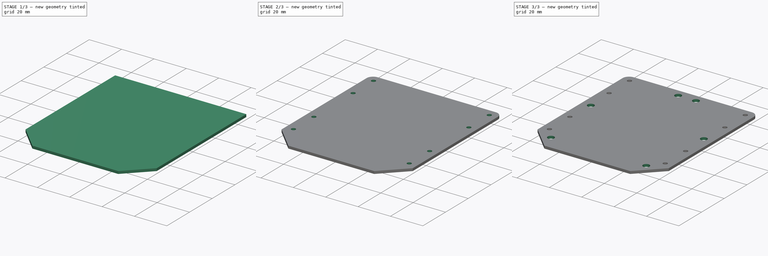
[diagram: build sequence overview — one tinted view per stage of 3, left to right]
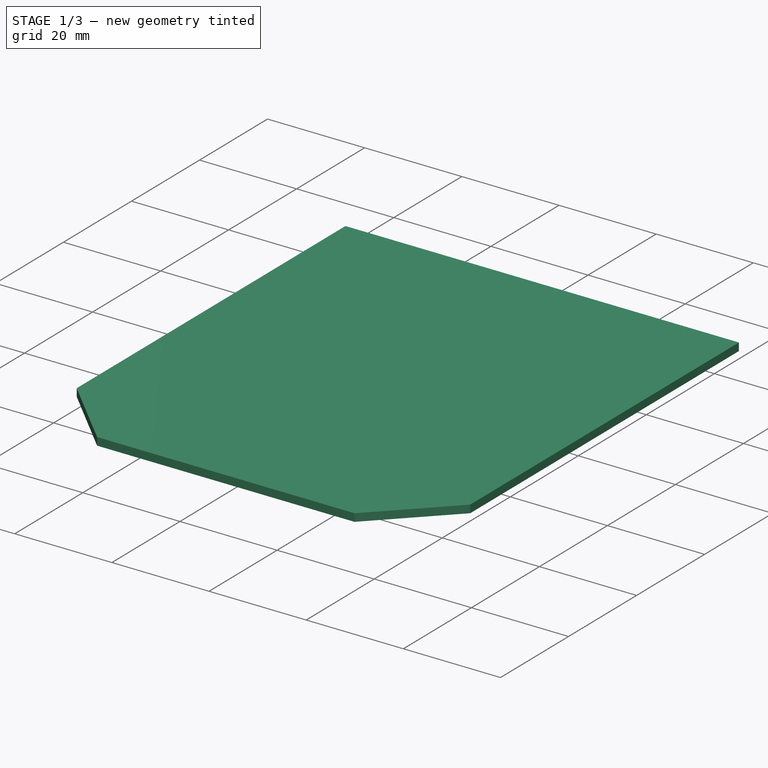
[diagram: stage 1 of 3 — iso view after this stage's code; geometry added in this stage tinted green]
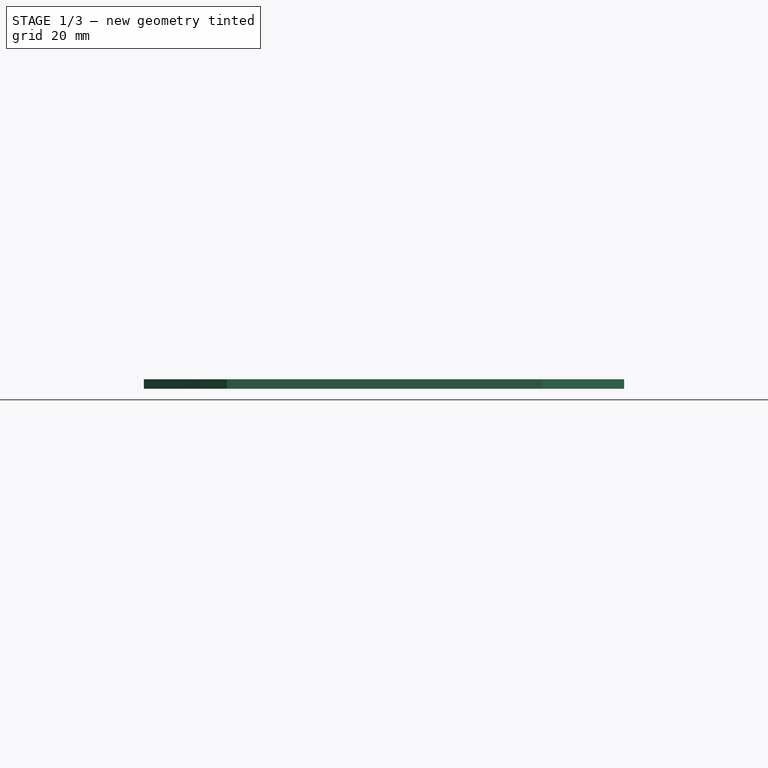
[diagram: stage 1 of 3 — front view after this stage's code; geometry added in this stage tinted green]
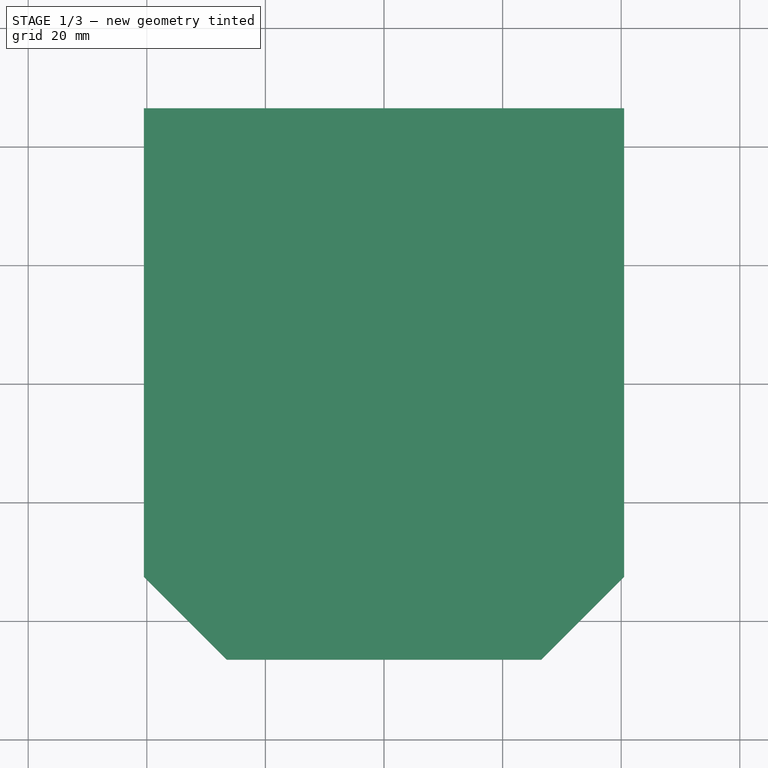
[diagram: stage 1 of 3 — top view after this stage's code; geometry added in this stage tinted green]
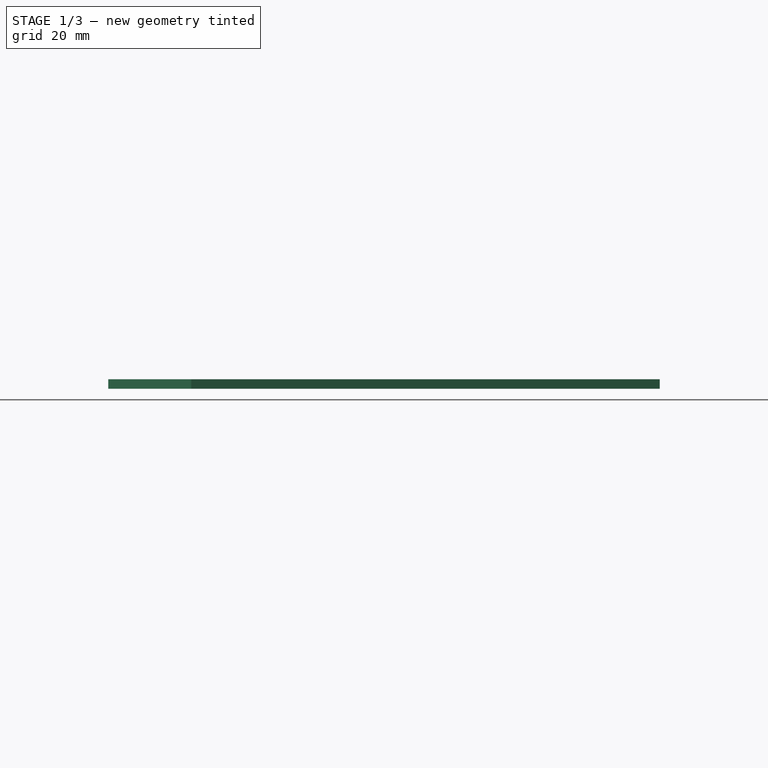
[diagram: stage 1 of 3 — right view after this stage's code; geometry added in this stage tinted green]
FCSTD DOCUMENT  (FreeCAD 0.20R29603 (Git))
Label: PCB
License: All rights reserved
LicenseURL: http://en.wikipedia.org/wiki/All_rights_reserved
objects: PartDesign::Line×14, Sketcher::SketchObject×4, PartDesign::Hole×3, PartDesign::Pad×1, PartDesign::Chamfer×1, PartDesign::Fillet×1, PartDesign::CoordinateSystem×1, PartDesign::Body×1
note: 32 computed .brp shape members not serialized (recipe doc carries the construction recipe); baked Part::Feature solids carry a one-line shape summary decoded from their .brp

FEATURE [Sketcher::SketchObject] Sketch001  label="pcb_outline"
  FullyConstrained = true
  MapMode = 5
  Support = -> [XY_Plane035]
  sketch-geometry (4):
    g0: LineSegment StartX=-40.5 StartY=46.5 StartZ=0 EndX=40.5 EndY=46.5 EndZ=0
    g1: LineSegment StartX=40.5 StartY=46.5 StartZ=0 EndX=40.5 EndY=-46.5 EndZ=0
    g2: LineSegment StartX=40.5 StartY=-46.5 StartZ=0 EndX=-40.5 EndY=-46.5 EndZ=0
    g3: LineSegment StartX=-40.5 StartY=-46.5 StartZ=0 EndX=-40.5 EndY=46.5 EndZ=0
  constraints (10):
    c: Coincident(g0,g1)
    c: Coincident(g1,g2)
    c: Coincident(g2,g3)
    c: Coincident(g3,g0)
    c: Horizontal(g0)
    c: Vertical(g1)
    c: Symmetric(g2,g1,g-2)
    c: Symmetric(g0,g2,g-1)
    c: DistanceX(g0,g0) = 81
    c: DistanceY(g1,g1) = 93
FEATURE [PartDesign::Pad] Pad  label="pcb_main_solid"
  Direction = (0,0,1)
  Length = 1.6
  Length2 = 10
  Profile = -> Sketch001
  ReferenceAxis = -> Sketch001 [N_Axis]
  Reversed = true
  Type = 0
FEATURE [PartDesign::Chamfer] Chamfer  label="pcb_front_corners"
  Angle = 45
  Base = -> Pad [Edge8,Edge5]
  BaseFeature = -> Pad
  ChamferType = 0
  FlipDirection = false
  Size = 14
  Size2 = 1
  SupportTransform = false
  UseAllEdges = false
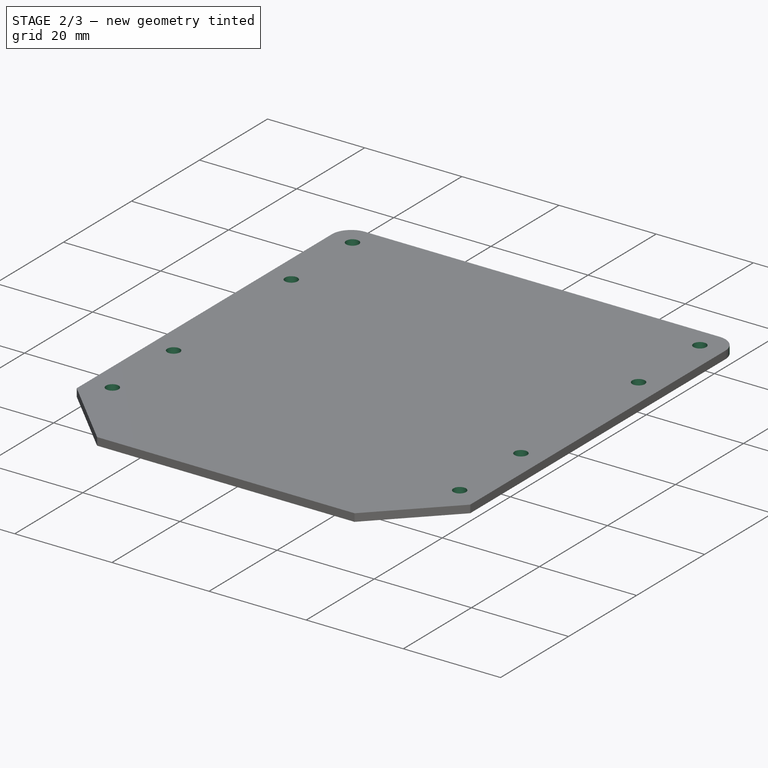
[diagram: stage 2 of 3 — iso view after this stage's code; geometry added in this stage tinted green]
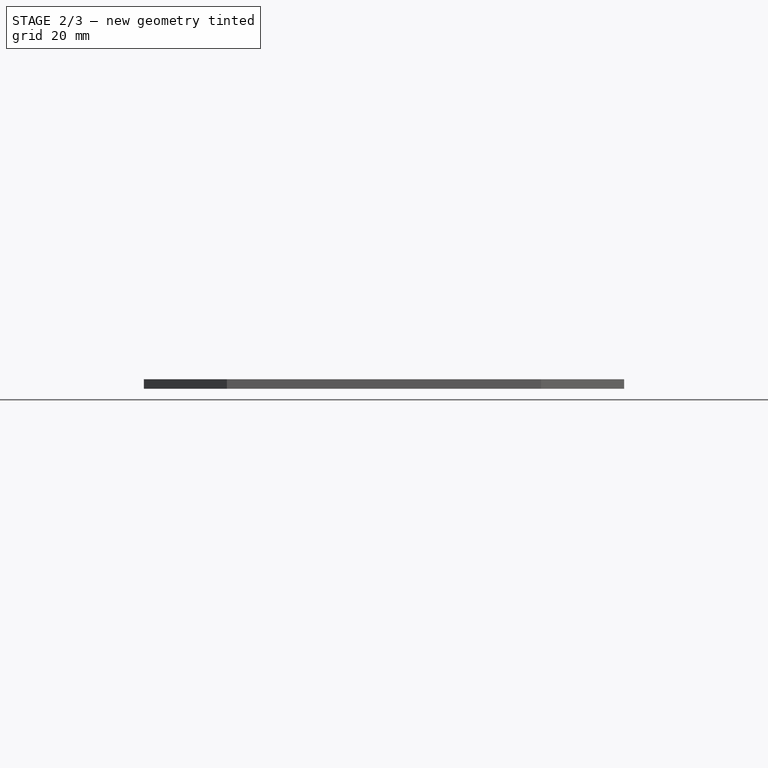
[diagram: stage 2 of 3 — front view after this stage's code; geometry added in this stage tinted green]
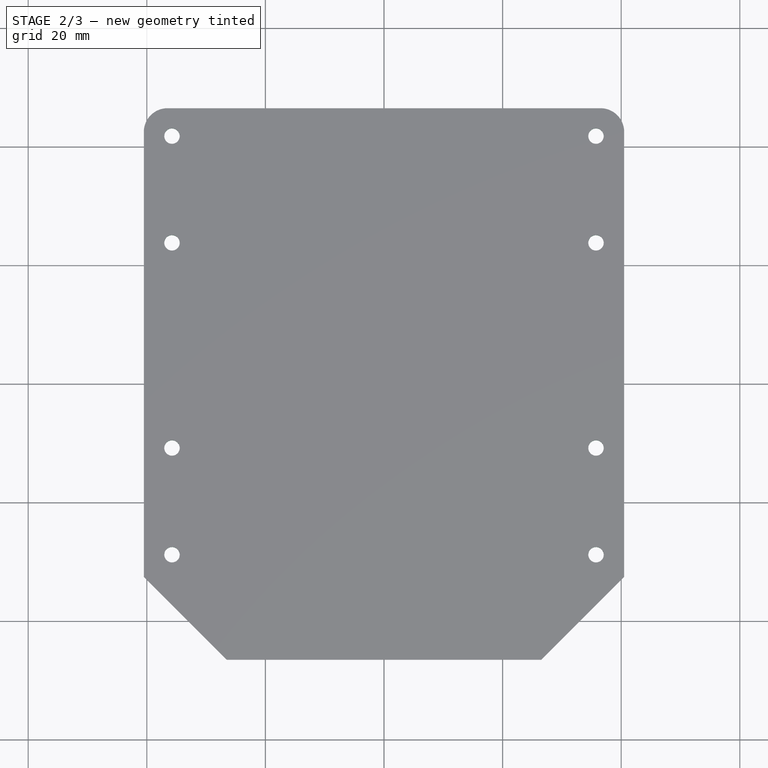
[diagram: stage 2 of 3 — top view after this stage's code; geometry added in this stage tinted green]
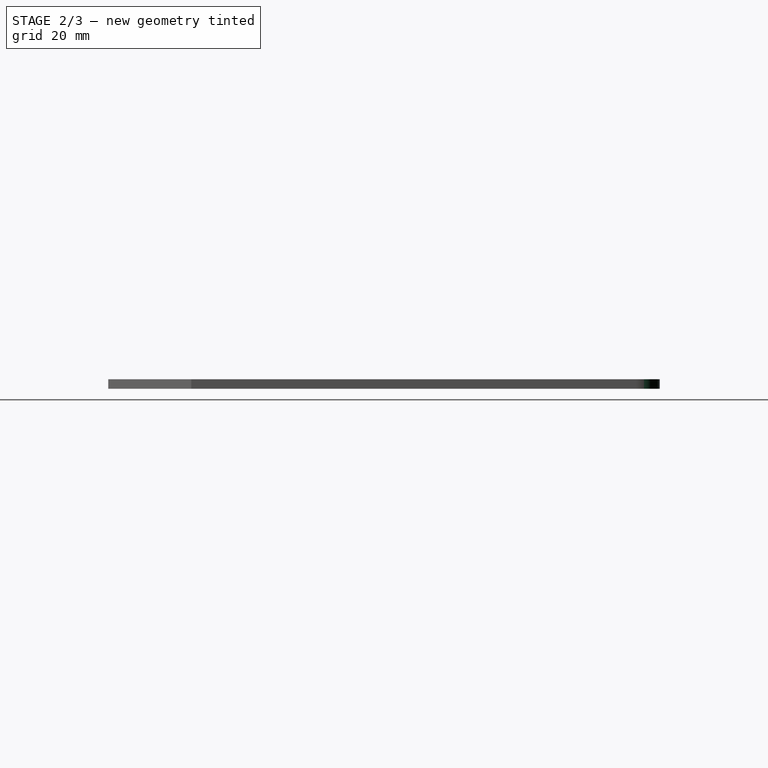
[diagram: stage 2 of 3 — right view after this stage's code; geometry added in this stage tinted green]
FEATURE [PartDesign::Fillet] Fillet  label="pcb_rear_edges"
  Base = -> Chamfer [Edge12,Edge3]
  BaseFeature = -> Chamfer
  Radius = 4
  SupportTransform = false
  UseAllEdges = false
FEATURE [Sketcher::SketchObject] Sketch002  label="motor_mount_holes"
  FullyConstrained = true
  MapMode = 5
  Support = -> [Fillet]
  sketch-geometry (8):
    g0: Circle CenterX=-35.75 CenterY=41.8 CenterZ=0 NormalX=0 NormalY=0 NormalZ=1 AngleXU=0 Radius=1.15
    g1: Circle CenterX=-35.75 CenterY=23.8 CenterZ=0 NormalX=0 NormalY=0 NormalZ=1 AngleXU=0 Radius=1.15
    g2: Circle CenterX=35.75 CenterY=41.8 CenterZ=0 NormalX=0 NormalY=0 NormalZ=1 AngleXU=0 Radius=1.15
    g3: Circle CenterX=35.75 CenterY=23.8 CenterZ=0 NormalX=0 NormalY=0 NormalZ=1 AngleXU=0 Radius=1.15
    g4: Circle CenterX=-35.75 CenterY=-10.8 CenterZ=0 NormalX=0 NormalY=0 NormalZ=1 AngleXU=0 Radius=1.15
    g5: Circle CenterX=-35.75 CenterY=-28.8 CenterZ=0 NormalX=0 NormalY=0 NormalZ=1 AngleXU=0 Radius=1.15
    g6: Circle CenterX=35.75 CenterY=-28.8 CenterZ=0 NormalX=0 NormalY=0 NormalZ=1 AngleXU=0 Radius=1.15
    g7: Circle CenterX=35.75 CenterY=-10.8 CenterZ=0 NormalX=0 NormalY=0 NormalZ=1 AngleXU=0 Radius=1.15
  constraints (8):
    c: Block(g0)
    c: Block(g2)
    c: Block(g1)
    c: Block(g3)
    c: Block(g4)
    c: Block(g5)
    c: Block(g6)
    c: Block(g7)
FEATURE [PartDesign::Hole] Hole  label="motor_mount_holes001"
  BaseFeature = -> Fillet
  CustomThreadClearance = 0
  Depth = 249.145
  DepthType = 1
  Diameter = 2.6
  DrillForDepth = false
  DrillPoint = 1
  DrillPointAngle = 118
  HoleCutCountersinkAngle = 90
  HoleCutCustomValues = false
  HoleCutDepth = 0
  HoleCutDiameter = 6.1
  HoleCutType = 0
  ModelThread = false
  Profile = -> Sketch002
  Tapered = false
  TaperedAngle = 90
  ThreadClass = 0
  ThreadDepth = 249.145
  ThreadDepthType = 0
  ThreadDirection = 0
  ThreadFit = 0
  ThreadSize = 0
  ThreadType = 0
  Threaded = false
  UseCustomThreadClearance = false
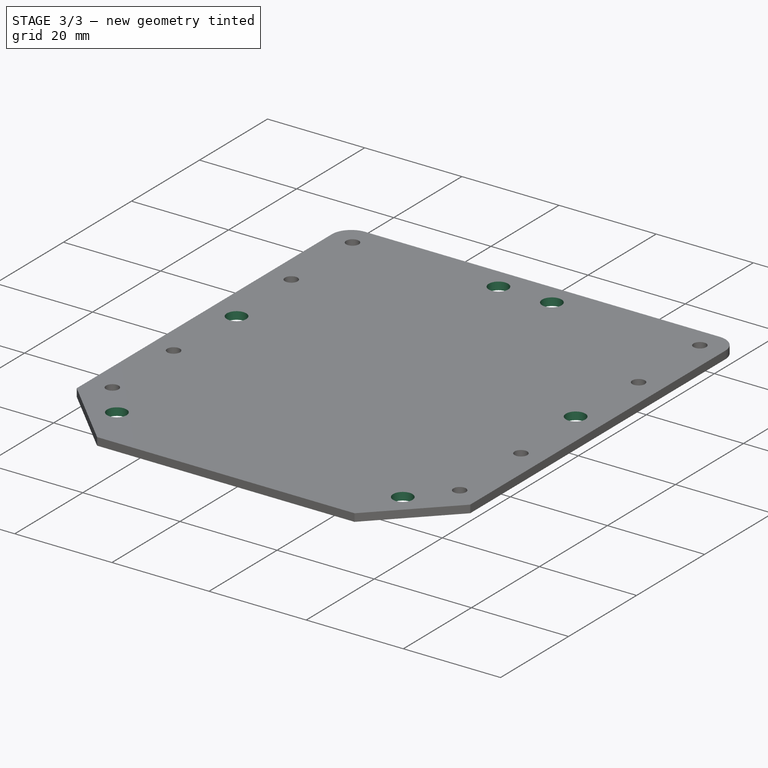
[diagram: stage 3 of 3 — iso view after this stage's code; geometry added in this stage tinted green]
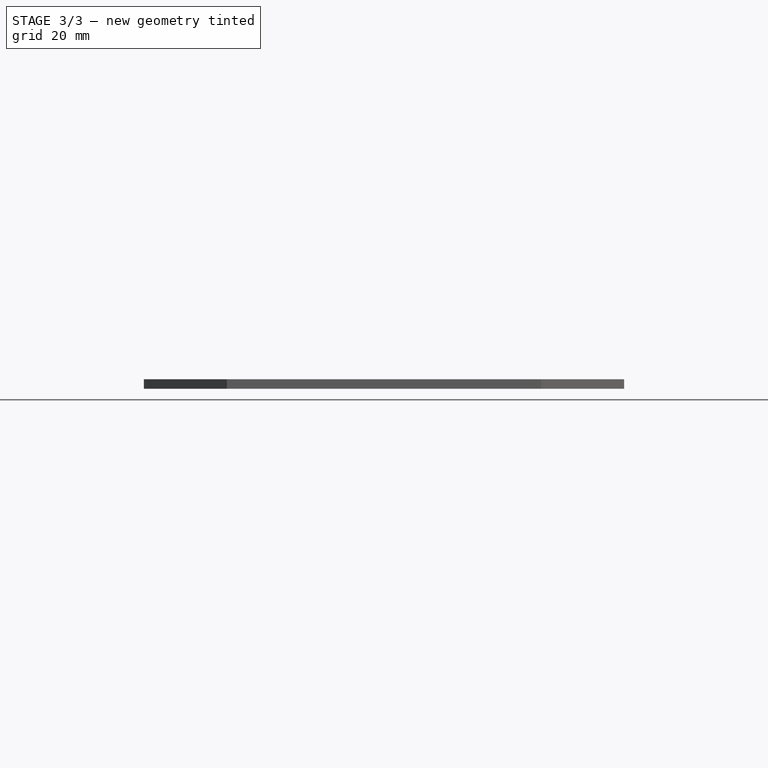
[diagram: stage 3 of 3 — front view after this stage's code; geometry added in this stage tinted green]
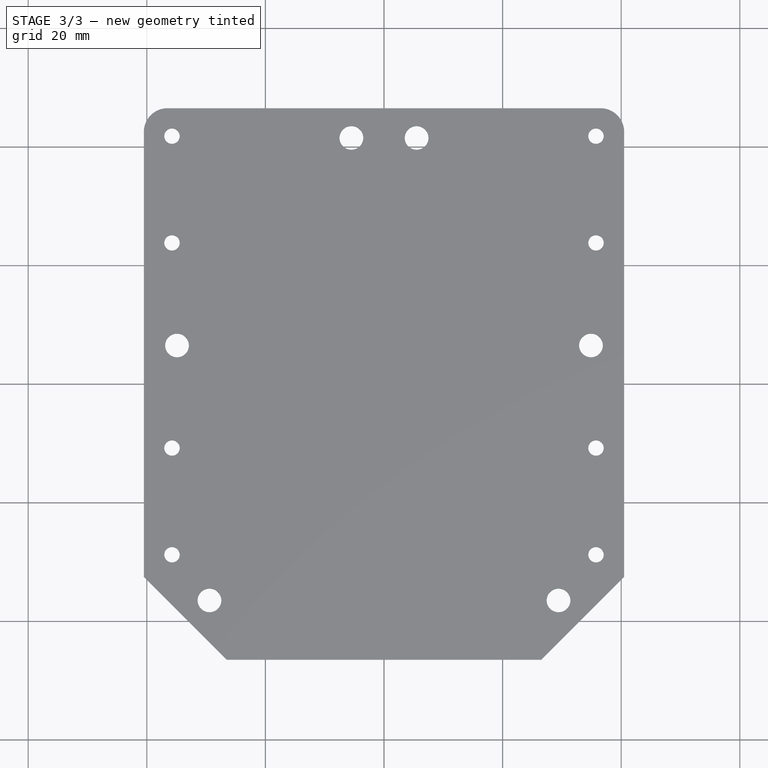
[diagram: stage 3 of 3 — top view after this stage's code; geometry added in this stage tinted green]
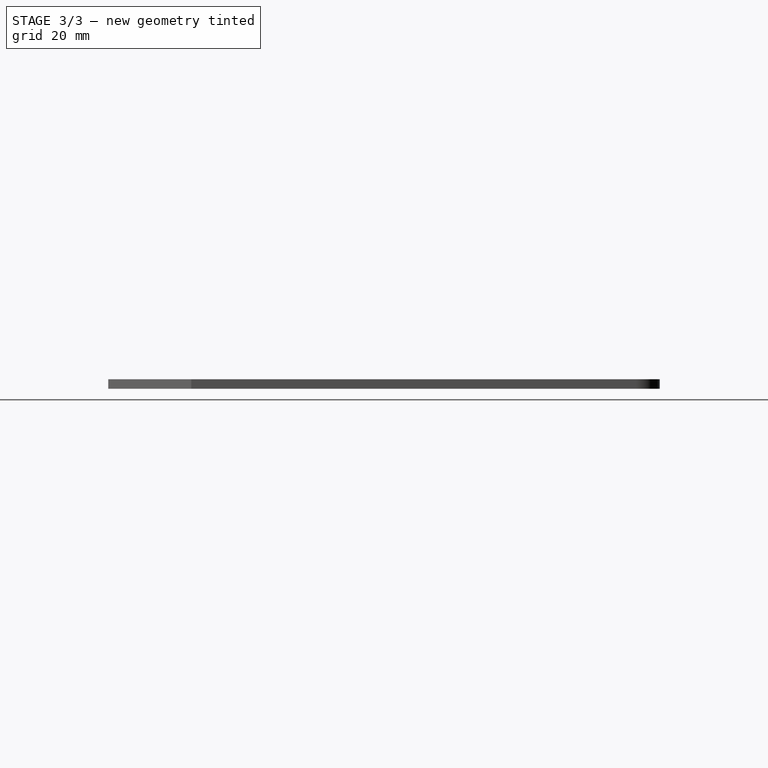
[diagram: stage 3 of 3 — right view after this stage's code; geometry added in this stage tinted green]
FEATURE [Sketcher::SketchObject] Sketch003  label="body_mount_holes"
  ExternalGeometry = -> [Hole]
  FullyConstrained = true
  MapMode = 5
  Support = -> [Hole]
  sketch-geometry (4):
    g0: Circle CenterX=-5.5 CenterY=41.5 CenterZ=0 NormalX=0 NormalY=0 NormalZ=1 AngleXU=0 Radius=3.25
    g1: Circle CenterX=5.5 CenterY=41.5 CenterZ=0 NormalX=0 NormalY=0 NormalZ=1 AngleXU=0 Radius=3.25
    g2: Circle CenterX=-29.4289 CenterY=-36.5 CenterZ=0 NormalX=0 NormalY=0 NormalZ=1 AngleXU=0 Radius=3.25
    g3: Circle CenterX=29.4289 CenterY=-36.5 CenterZ=0 NormalX=0 NormalY=0 NormalZ=1 AngleXU=0 Radius=3.25
  constraints (10):
    c: Symmetric(g0,g1,g-2)
    c: Symmetric(g2,g3,g-2)
    c: Equal(g0,g1)
    c: Equal(g0,g2)
    c: Equal(g0,g3)
    c: Diameter(g0) = 6.5
    c: Distance(g0,g-2) = 5.5
    c: Distance(g0,g-3) = 5
    c: Distance(g2,g-4) = 5
    c: Distance(g2,g-5) = 10
FEATURE [PartDesign::Hole] Hole001  label="body_mount_holes001"
  BaseFeature = -> Hole
  CustomThreadClearance = 0
  Depth = 249.145
  DepthType = 1
  Diameter = 4
  DrillForDepth = false
  DrillPoint = 1
  DrillPointAngle = 118
  HoleCutCountersinkAngle = 90
  HoleCutCustomValues = false
  HoleCutDepth = 0
  HoleCutDiameter = 6.1
  HoleCutType = 0
  ModelThread = false
  Profile = -> Sketch003
  Tapered = false
  TaperedAngle = 90
  ThreadClass = 0
  ThreadDepth = 249.145
  ThreadDepthType = 0
  ThreadDirection = 0
  ThreadFit = 0
  ThreadSize = 0
  ThreadType = 0
  Threaded = false
  UseCustomThreadClearance = false
FEATURE [Sketcher::SketchObject] Sketch004  label="side_mount_holes"
  FullyConstrained = true
  MapMode = 5
  Support = -> [Hole001]
  sketch-geometry (4):
    g0: Circle CenterX=-34.9 CenterY=6.5 CenterZ=0 NormalX=0 NormalY=0 NormalZ=1 AngleXU=0 Radius=3.25
    g1: Circle CenterX=34.9 CenterY=6.5 CenterZ=0 NormalX=0 NormalY=0 NormalZ=1 AngleXU=0 Radius=3.25
    g2: LineSegment StartX=-36.9 StartY=-10.8 StartZ=0 EndX=-36.9 EndY=23.8 EndZ=0
    g3: GeomPoint X=-36.9 Y=6.5 Z=0
  constraints (7):
    c: Symmetric(g0,g1,g-2)
    c: Equal(g0,g1)
    c: Diameter(g0) = 6.5
    c: Symmetric(g2,g2,g3)
    c: Horizontal(g3,g0)
    c: Block(g2)
    c: Distance(g0,g2) = 2
FEATURE [PartDesign::Hole] Hole002  label="side_mount_holes001"
  BaseFeature = -> Hole001
  CustomThreadClearance = 0
  Depth = 249.145
  DepthType = 1
  Diameter = 4
  DrillForDepth = false
  DrillPoint = 1
  DrillPointAngle = 118
  HoleCutCountersinkAngle = 90
  HoleCutCustomValues = false
  HoleCutDepth = 0
  HoleCutDiameter = 6.1
  HoleCutType = 0
  ModelThread = false
  Profile = -> Sketch004
  Tapered = false
  TaperedAngle = 90
  ThreadClass = 0
  ThreadDepth = 249.145
  ThreadDepthType = 0
  ThreadDirection = 0
  ThreadFit = 0
  ThreadSize = 0
  ThreadType = 0
  Threaded = false
  UseCustomThreadClearance = false
FEATURE [PartDesign::CoordinateSystem] LCS_1
  AttacherType = Attacher::AttachEngine3D
  Support = -> [Hole002]
FEATURE [PartDesign::Line] HoleAxis_1
  AttacherType = Attacher::AttachEngineLine
  Length = 3.66358
  MapMode = 19
  Placement = pos=(-35.75,23.8,0) rot=(0,0,1;0rad)
  ResizeMode = 1
  Support = -> [Hole002]
FEATURE [PartDesign::Line] HoleAxis_2
  AttacherType = Attacher::AttachEngineLine
  Length = 3.66358
  MapMode = 19
  Placement = pos=(-35.75,41.8,0) rot=(0,0,1;0rad)
  ResizeMode = 1
  Support = -> [Hole002]
FEATURE [PartDesign::Line] HoleAxis_3
  AttacherType = Attacher::AttachEngineLine
  Length = 3.66358
  MapMode = 19
  Placement = pos=(35.75,41.8,0) rot=(0,0,1;0rad)
  ResizeMode = 1
  Support = -> [Hole002]
FEATURE [PartDesign::Line] HoleAxis_4
  AttacherType = Attacher::AttachEngineLine
  Length = 3.66358
  MapMode = 19
  Placement = pos=(35.75,23.8,0) rot=(0,0,1;0rad)
  ResizeMode = 1
  Support = -> [Hole002]
FEATURE [PartDesign::Line] HoleAxis_5
  AttacherType = Attacher::AttachEngineLine
  Length = 3.66358
  MapMode = 19
  Placement = pos=(35.75,-10.8,0) rot=(0,0,1;0rad)
  ResizeMode = 1
  Support = -> [Hole002]
FEATURE [PartDesign::Line] HoleAxis_6
  AttacherType = Attacher::AttachEngineLine
  Length = 3.66358
  MapMode = 19
  Placement = pos=(35.75,-28.8,0) rot=(0,0,1;0rad)
  ResizeMode = 1
  Support = -> [Hole002]
FEATURE [PartDesign::Line] HoleAxis_7
  AttacherType = Attacher::AttachEngineLine
  Length = 3.66358
  MapMode = 19
  Placement = pos=(-35.75,-28.8,0) rot=(0,0,1;0rad)
  ResizeMode = 1
  Support = -> [Hole002]
FEATURE [PartDesign::Line] HoleAxis_8
  AttacherType = Attacher::AttachEngineLine
  Length = 3.66358
  MapMode = 19
  Placement = pos=(-35.75,-10.8,0) rot=(0,0,1;0rad)
  ResizeMode = 1
  Support = -> [Hole002]
FEATURE [PartDesign::Line] HoleAxis_9
  AttacherType = Attacher::AttachEngineLine
  Length = 5.63627
  MapMode = 19
  Placement = pos=(-34.9,6.5,0) rot=(0,0,1;0rad)
  ResizeMode = 1
  Support = -> [Hole002]
FEATURE [PartDesign::Line] HoleAxis_10
  AttacherType = Attacher::AttachEngineLine
  Length = 5.63627
  MapMode = 19
  Placement = pos=(34.9,6.5,0) rot=(0,0,1;0rad)
  ResizeMode = 1
  Support = -> [Hole002]
FEATURE [PartDesign::Line] HoleAxis_11
  AttacherType = Attacher::AttachEngineLine
  Length = 5.63627
  MapMode = 19
  Placement = pos=(-5.5,41.5,0) rot=(0,0,1;0rad)
  ResizeMode = 1
  Support = -> [Hole002]
FEATURE [PartDesign::Line] HoleAxis_12
  AttacherType = Attacher::AttachEngineLine
  Length = 5.63627
  MapMode = 19
  Placement = pos=(5.5,41.5,0) rot=(0,0,1;0rad)
  ResizeMode = 1
  Support = -> [Hole002]
FEATURE [PartDesign::Line] HoleAxis_13
  AttacherType = Attacher::AttachEngineLine
  Length = 5.63627
  MapMode = 19
  Placement = pos=(-29.4289,-36.5,0) rot=(0,0,1;0rad)
  ResizeMode = 1
  Support = -> [Hole002]
FEATURE [PartDesign::Line] HoleAxis_14
  AttacherType = Attacher::AttachEngineLine
  Length = 5.63627
  MapMode = 19
  Placement = pos=(29.4289,-36.5,0) rot=(0,0,1;0rad)
  ResizeMode = 1
  Support = -> [Hole002]
FEATURE [PartDesign::Body] Body  label="pcb_body"
  Group = -> [Sketch001,Pad,Chamfer,Fillet,Sketch002,Hole,Sketch003,Hole001,Sketch004,Hole002,LCS_1,HoleAxis_1,HoleAxis_2,HoleAxis_3,HoleAxis_4,HoleAxis_5,HoleAxis_6,HoleAxis_7,HoleAxis_8,HoleAxis_9,HoleAxis_10,HoleAxis_11,HoleAxis_12,HoleAxis_13,HoleAxis_14]
  Origin = -> Origin035
  Tip = -> Hole002
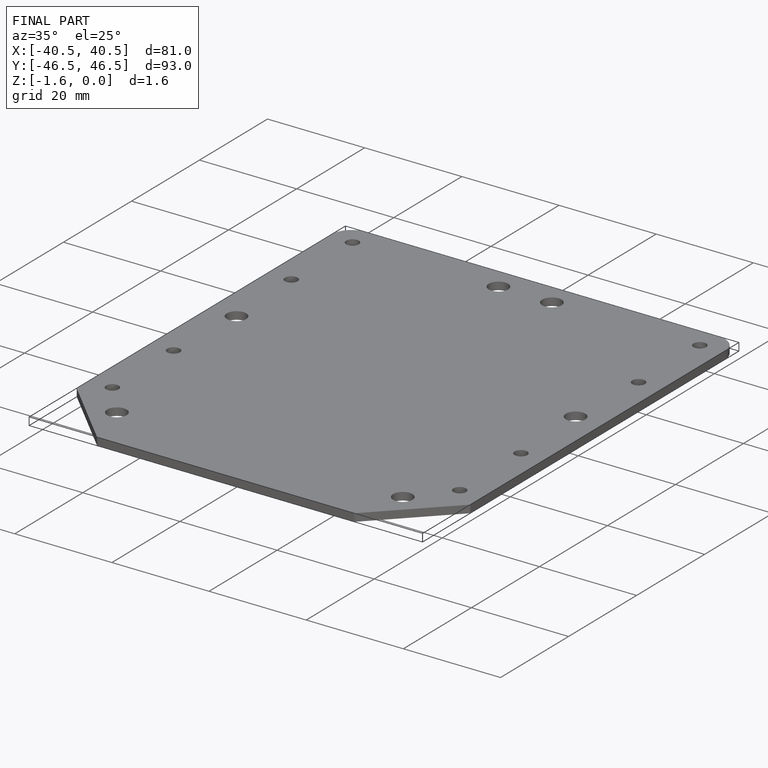
[diagram: finished part — iso view with bounding-box wireframe]
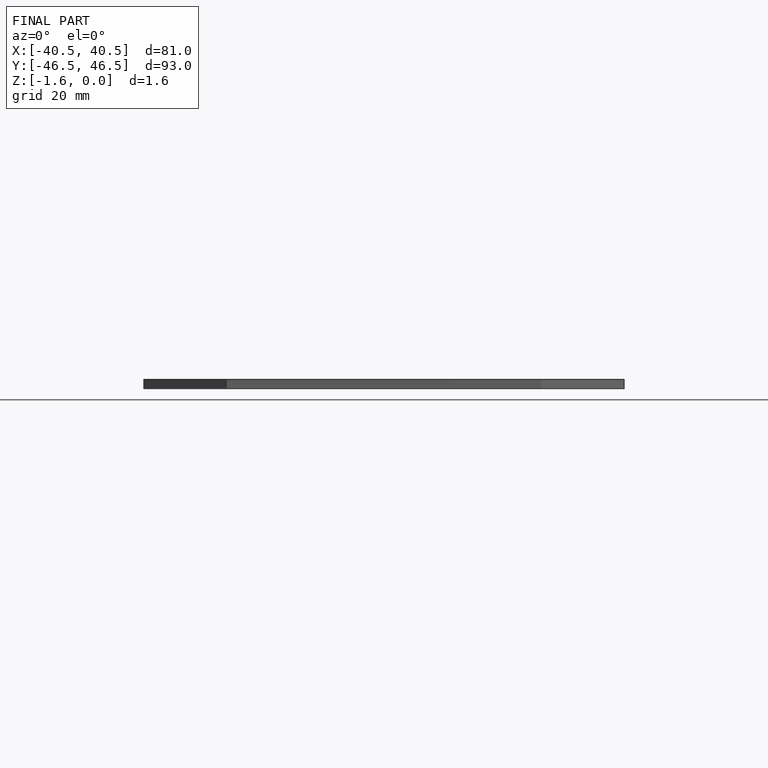
[diagram: finished part — front view with bounding-box wireframe]
